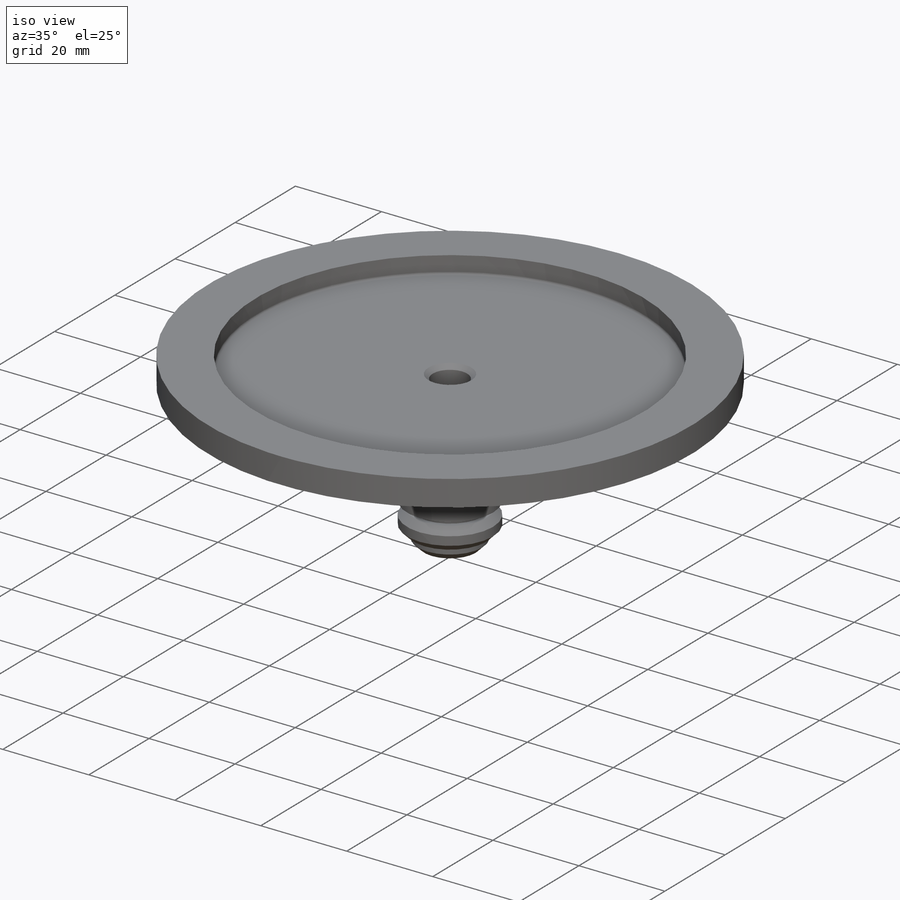
[diagram: iso view]
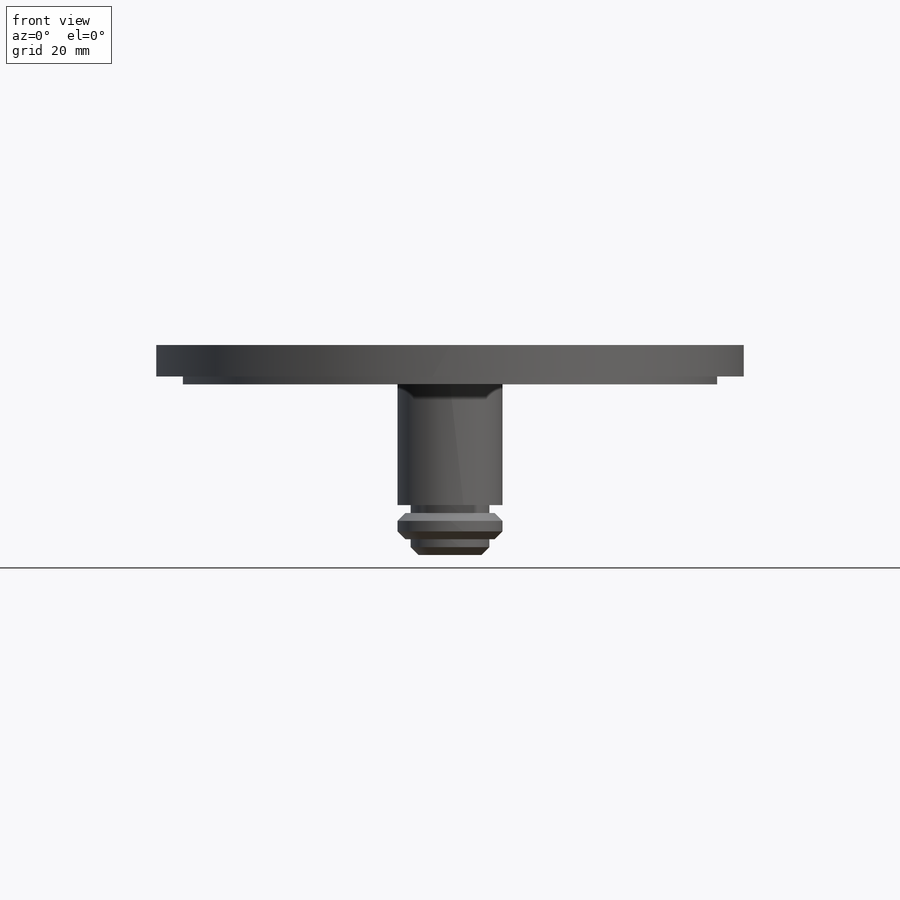
[diagram: front view]
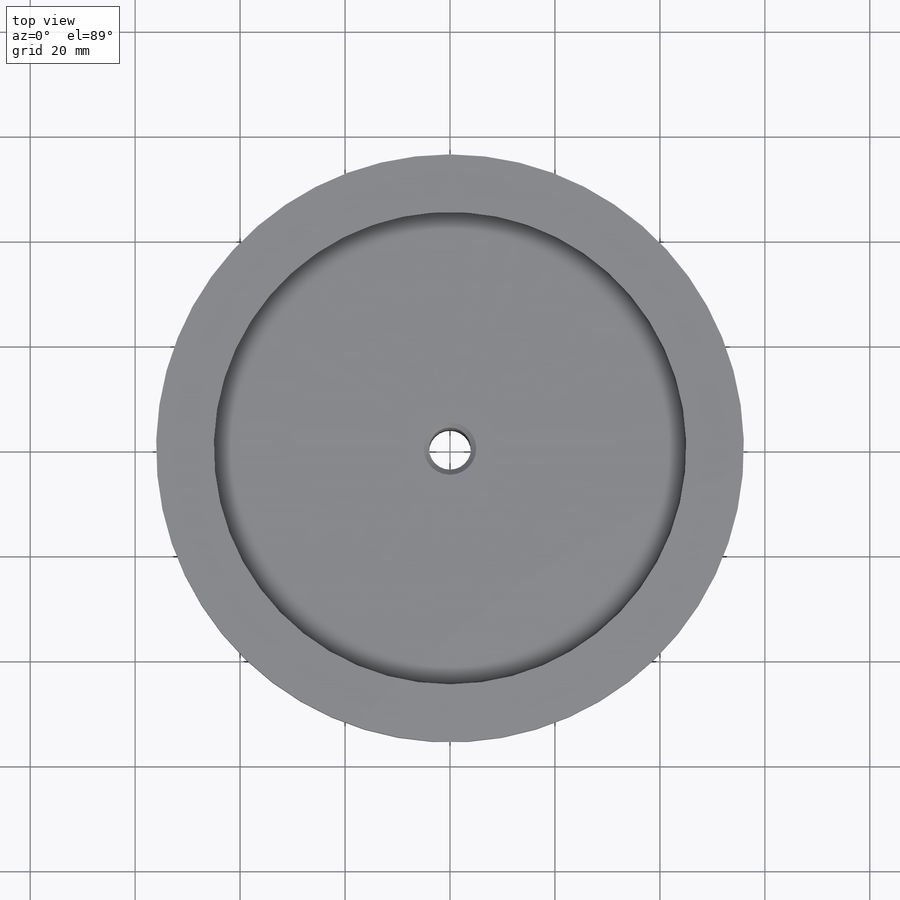
[diagram: top view]
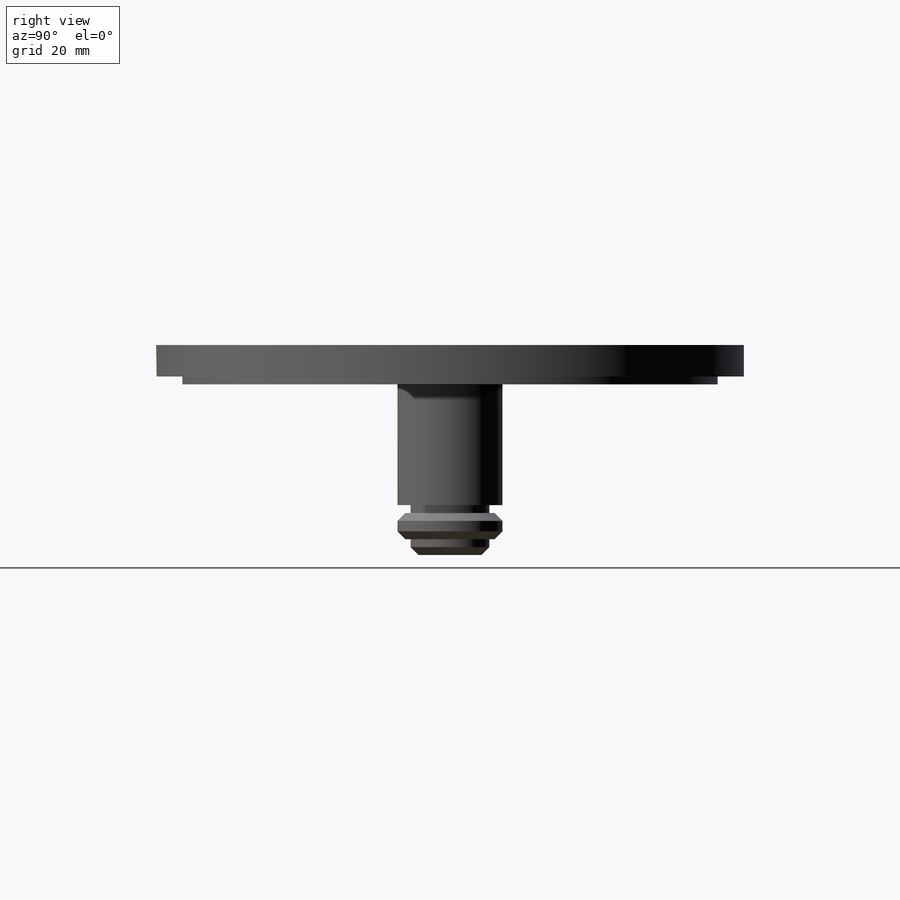
[diagram: right view]
SOLIDWORKS PART (.sldprt)
format: sldprt  version: not decoded by parser v0  size: 238,080 bytes
history: native  units: mm
features: sketch x12, cut_extrude x7, extrude x5, chamfer x4, mirror x2, material x1, plane x1, fillet x1 (+14 scaffold rows collapsed)
feature tree (47):
  scaffold x14  (default folders/planes/origin — collapsed)
  material  "Material <not specified>"
  sketch  "Sketch1"  dims[D1=~33.737282mm]
  extrude  "Extrude1"  Depth=7.5mm
  sketch  "Sketch2"  dims[D1=14.0mm]
  extrude  "Extrude5"  Depth=35mm
  sketch  "Sketch5"  dims[D1=~37.096857mm]
  cut_extrude  "Extrude6"  Depth=4mm
  sketch  "Sketch6"  dims[D1=~11.332112mm]
  cut_extrude  "Extrude7"  [1 undecoded]
  chamfer  "Chamfer3"  Distance=1mm Angle=45deg
  plane  "Plane1"  Offset=10mm
  sketch  "Sketch7"  dims[D1=1.5mm]
  cut_extrude  "Extrude8"  [1 undecoded]
  mirror  "Mirror2"
  sketch  "Sketch9"  dims[D1=1.0mm]
  cut_extrude  "Extrude10"  [1 undecoded]
  mirror  "Mirror3"
  sketch  "Sketch10"
  cut_extrude  "Extrude11"  [1 undecoded]
  sketch  "Sketch11"  dims[D1=~6.801824mm]
  extrude  "Extrude12"  Depth=1.5mm
  sketch  "Sketch12"  dims[D1=~10.058531mm]
  extrude  "Extrude13"  Depth=5mm
  sketch  "Sketch13"  dims[D1=~7.635163mm]
  extrude  "Extrude15"  Depth=3mm
  chamfer  "Chamfer4"  Distance=1.5mm Angle=45deg
  chamfer  "Chamfer6"  Distance=1.5mm Angle=45deg
  chamfer  "Chamfer7"  Distance=1.5mm Angle=45deg
  sketch  "Sketch16"
  cut_extrude  "Extrude16"  [1 undecoded]
  sketch  "Sketch17"  dims[D1=~51.645407mm]
  cut_extrude  "Extrude17"  Depth=1.5mm
  fillet  "Fillet7"  Radius=0.5mm
decode coverage: 22 of 31 modeling features carry decoded parameters
note: ~ marks probable driven/reference dimensions
note: 5 parameter values undecoded
summary: no parameter record found for 5 features
note: suppression state not decoded; provenance and decode notes live in map.json
